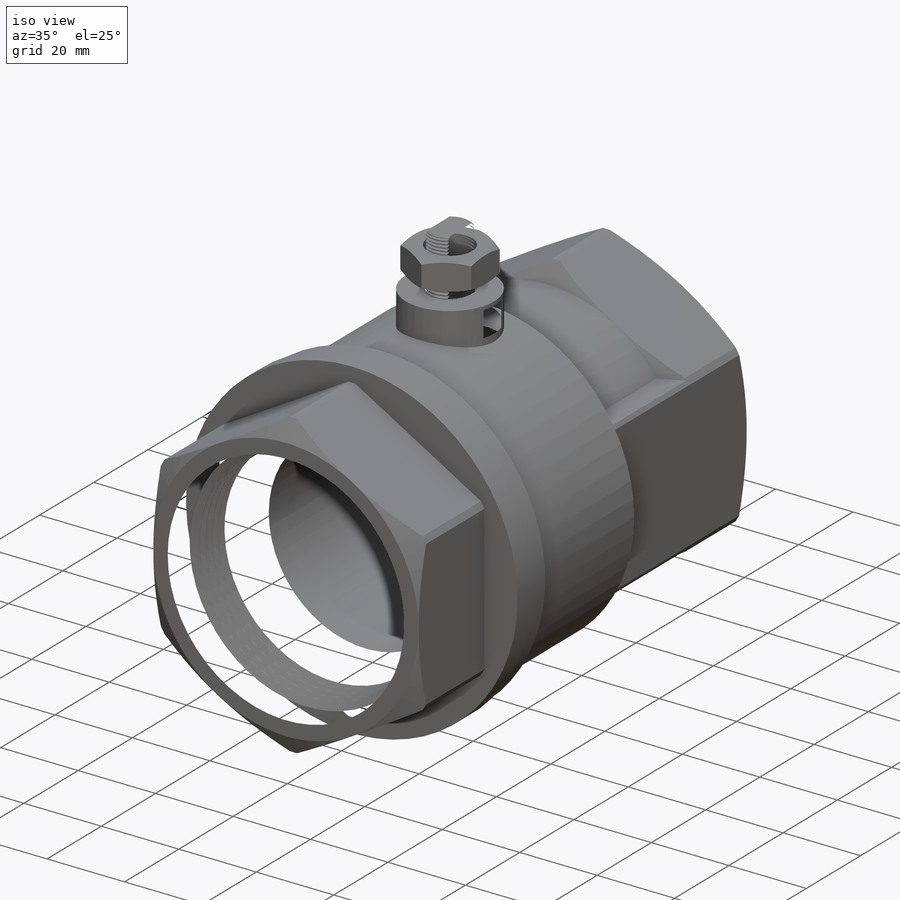
[diagram: iso view]
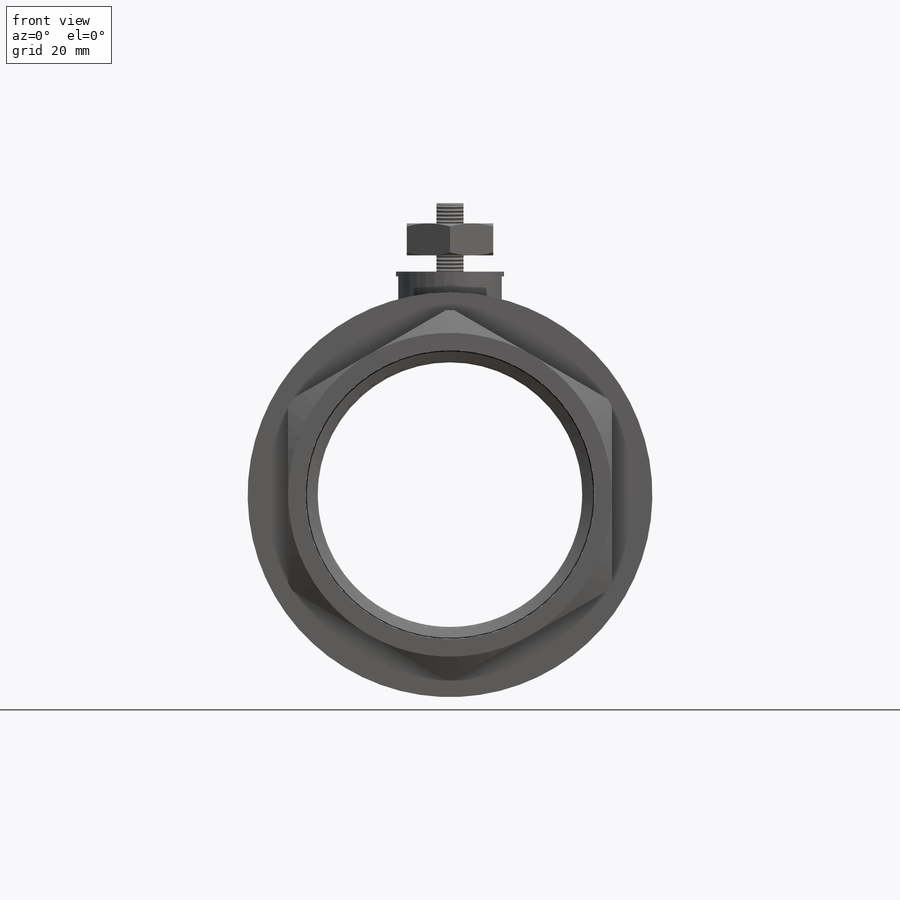
[diagram: front view]
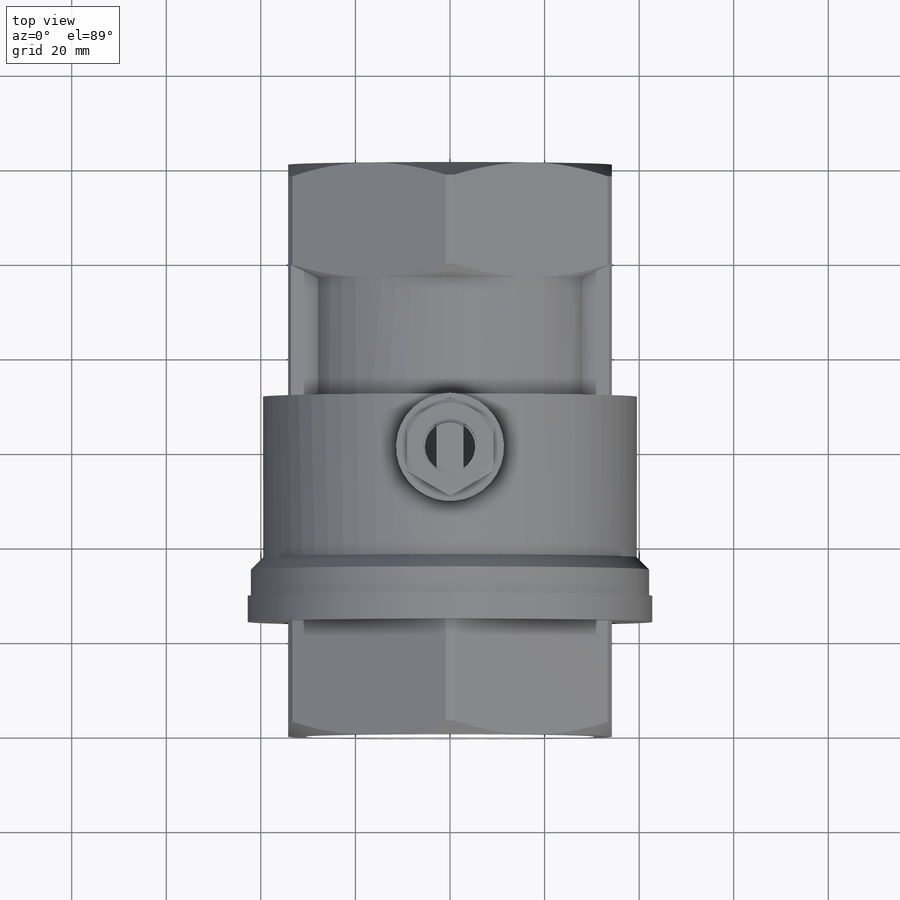
[diagram: top view]
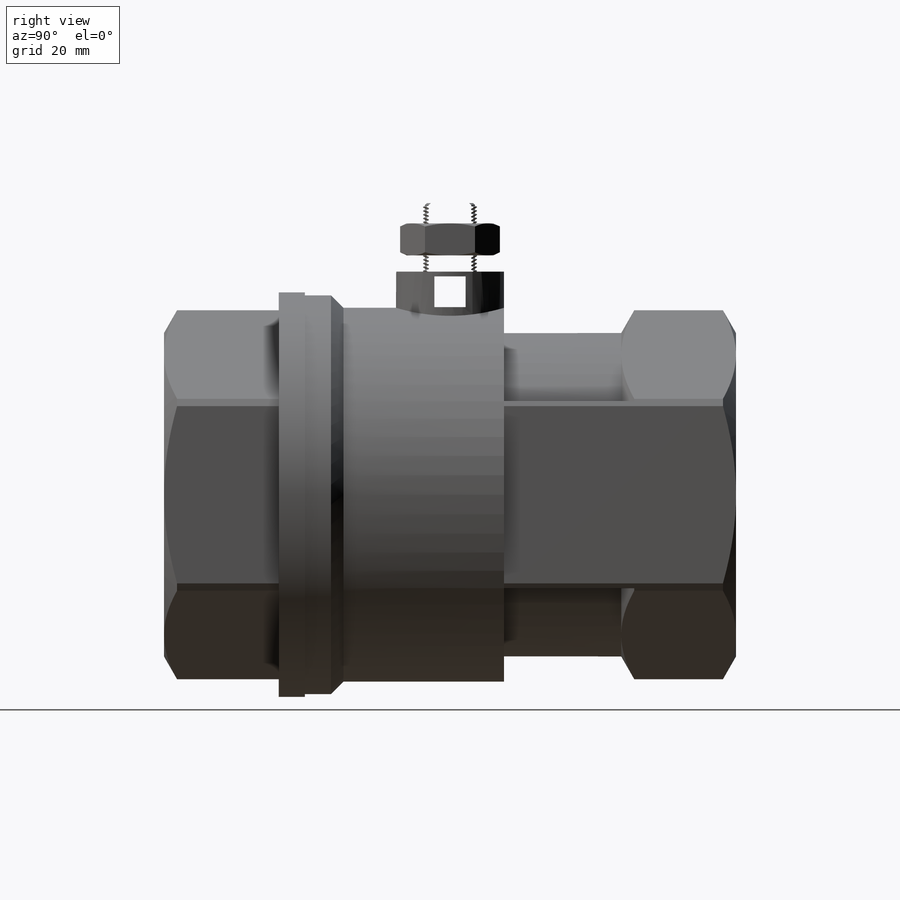
[diagram: right view]
SOLIDWORKS PART (.sldprt)
format: sldprt  version: not decoded by parser v0  size: 1,603,072 bytes
history: native  units: mm
features: sketch x26, extrude x10, cut_extrude x7, revolve x4, cut_revolve x4, fillet x4, plane x2, boolean_combine x2, material x1, mirror x1, chamfer x1, pattern_linear x1, pattern_circular x1 (+12 scaffold rows collapsed)
feature tree (76):
  scaffold x12  (default folders/planes/origin — collapsed)
  material  "Material <not specified>"
  sketch  "Sketch1"  dims[c1.D1=~16.540476mm c2.D1=60.0deg c2.E0=57.6326mm c2.Thread Pitch=~2.208696mm c2.D4=~0.177469mm c3.D4=3.58deg c3.D5=~0.078395mm c3.D2=~0.072887mm c3.D3=~0.084204mm c3.L2 Thread Engagement=19.2278mm c3.l Thread Length=26.4922mm c3.ID=102.2604mm c3.Pipe OD=114.3mm c3.Overall Length=304.8mm c4.D5=33.02mm c4.D6=6.0198mm c4.Body Length=120.9802mm c5.D5=33.9979mm]
  revolve  "Revolve1"  Angle=360deg
  sketch  "Sketch6"
  cut_revolve  "Cut-Revolve3"  Angle=360deg
  sketch  "Sketch7"  dims[c1.Min ID=49.9872mm c1.D1=~14.44824mm c2.D1=45.0deg]
  revolve  "Revolve3"  Angle=360deg
  mirror  "Mirror2"
  sketch  "Sketch8"  dims[Body Hex=68.4784mm]
  extrude  "Extrude1"  [1 undecoded]
  plane  "Plane3"
  sketch  "Sketch36"  dims[D1=1.016mm]
  cut_extrude  "Extrude13"  Depth=2.208696mm
  sketch  "Sketch9"  dims[c1.D1=~1.814286mm c1.D2=38.735mm c1.D3=~41.183042mm c2.D3=135.0deg c2.D4=~11.043478mm c2.D5=~36.206596mm c3.D3=~2.594009mm c4.D3=45.0deg c5.D3=~4.421099mm c6.D3=45.0deg c6.D6=0.635mm c6.D2=85.598mm c6.D7=11.43mm c6.D8=0.635mm]
  revolve  "Revolve4"  Angle=360deg
  sketch  "Sketch40"
  cut_extrude  "Extrude17"  [1 undecoded]
  sketch  "Sketch41"  dims[D1=0.0mm]
  cut_extrude  "Extrude18"  [1 undecoded]
  sketch  "Sketch10"  dims[c1.Handle Height=85.979mm c1.Handle Length=157.988mm c1.D3=22.86mm c1.D4=7.62mm c1.D5=~59.856668mm c1.D6=3.175mm c1.D7=1.27mm c1.D8=0.254mm c1.D9=1.27mm c1.D10=~10.208321mm c2.D10=150.0deg c2.D11=0.0254mm c2.D12=0.0254mm c2.D13=15.24mm c2.D14=0.762mm c2.D2=1.905mm c2.D4=~88.307262mm c3.D4=145.0deg c3.D10=11.4046mm c3.D15=7.112mm c3.D16=8.255mm c3.D17=1.27mm c4.D15=~6.895442mm]
  revolve  "Revolve5"  Angle=360deg
  sketch  "Sketch39"
  cut_extrude  "Extrude15"  [1 undecoded]
  chamfer  "Chamfer1"  Distance=0.762mm Angle=45deg
  sketch  "Sketch20"  dims[c1.D1=~0.099219mm c1.D2=~0.198437mm c1.D3=~0.79375mm c1.D4=~1.570135mm c2.D4=60.0deg c2.D5=~0.79375mm]
  cut_revolve  "Cut-Revolve6"  Angle=360deg
  pattern_linear  "LPattern1"  Count1=2 Count2=19 Spacing1=0.79375mm Spacing2=0.79375mm
  sketch  "Sketch26"  dims[D1=0.0mm]
  extrude  "Extrude8"  Depth=0.127mm
  sketch  "Sketch38"  dims[c1.D1=0.0mm c1.D2=0.0mm c2.D1=0.508mm]
  extrude  "Extrude16"  [1 undecoded]
  sketch  "Sketch16"  dims[D1=0.508mm]
  cut_revolve  "Cut-Revolve5"  Angle=360deg
  boolean_combine  "Combine1"
  plane  "Plane2"
  sketch  "Sketch27"  dims[D1=5.7023mm]
  cut_extrude  "Cut-Extrude3"  [1 undecoded]
  sketch  "Sketch11"  dims[D1=1.905mm]
  extrude  "Extrude2"  Depth=22.86mm
  fillet  "Fillet1"  Radius=0.508mm
  fillet  "Fillet2"  Radius=3.683mm
  sketch  "Sketch29"
  pattern_circular  "CirPattern1"  Count=2 Angle=90deg
  sketch  "Sketch30"  dims[D1=0.0mm]
  extrude  "Extrude9"  [1 undecoded]
  boolean_combine  "Combine2"
  sketch  "Sketch31"  dims[D1=7.62mm D2=3.81mm]
  cut_extrude  "Cut-Extrude5"  [1 undecoded]
  sketch  "Sketch21"
  cut_extrude  "Cut-Extrude1"  [1 undecoded]
  sketch  "Sketch32"  dims[c1.D1=1.27mm c1.D2=0.127mm c1.D3=~17.652805mm c2.D3=135.0deg]
  extrude  "Extrude10"  Depth=6.604mm
  fillet  "Fillet3"  Radius=11.43mm
  sketch  "Sketch12"  dims[D1=1.905mm D2=2.54mm]
  extrude  "Extrude3"  Depth=1.905mm
  sketch  "Sketch13"  dims[D1=0.0mm]
  extrude  "Extrude4"  Depth=1.905mm
  sketch  "Sketch14"  dims[D1=0.0mm]
  extrude  "Extrude5"  [1 undecoded]
  fillet  "Fillet4"  Radius=1.524mm
  sketch  "Sketch15"  dims[D1=18.288mm]
  extrude  "Extrude6"  Depth=6.773333mm
  sketch  "Sketch22"  dims[c1.D1=~1.288633mm c2.D1=25.0deg c2.D2=18.288mm]
  cut_revolve  "Cut-Revolve7"  Angle=360deg
decode coverage: 43 of 61 modeling features carry decoded parameters
note: ~ marks probable driven/reference dimensions
note: 10 parameter values undecoded
summary: no parameter record found for 10 features
note: suppression state not decoded; provenance and decode notes live in map.json
